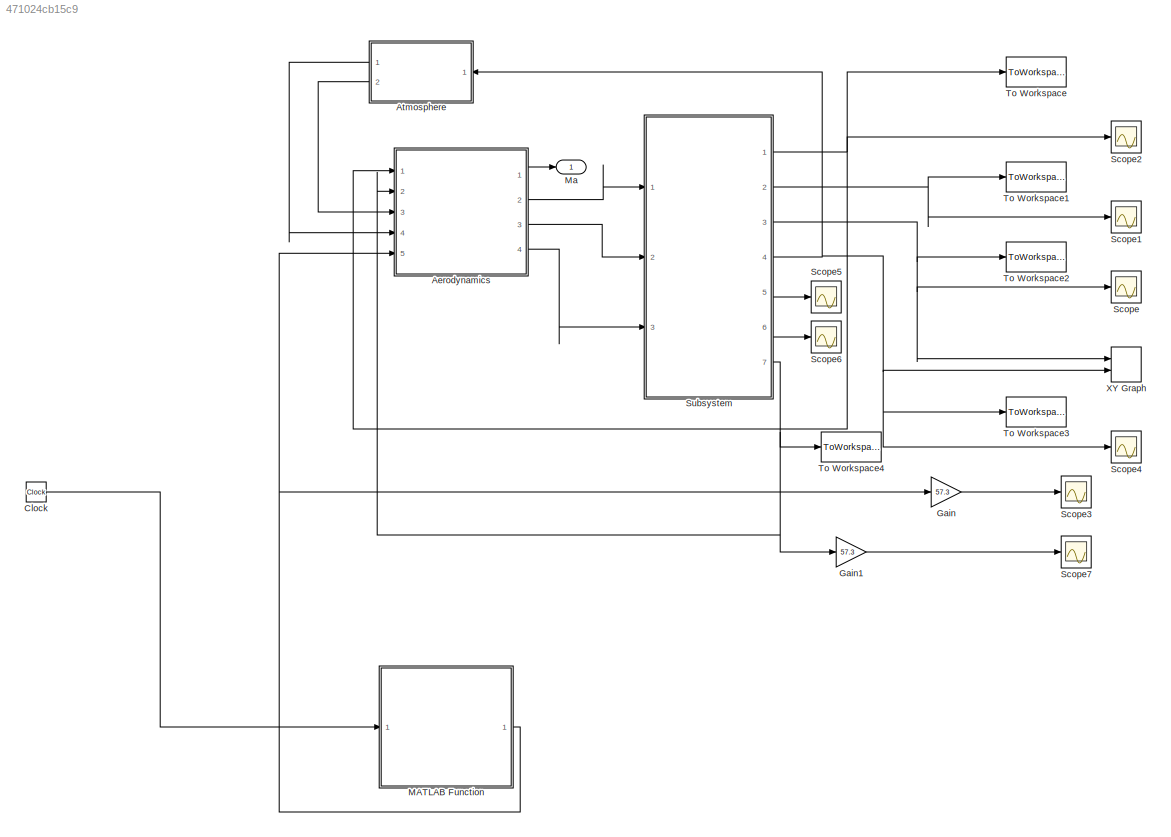
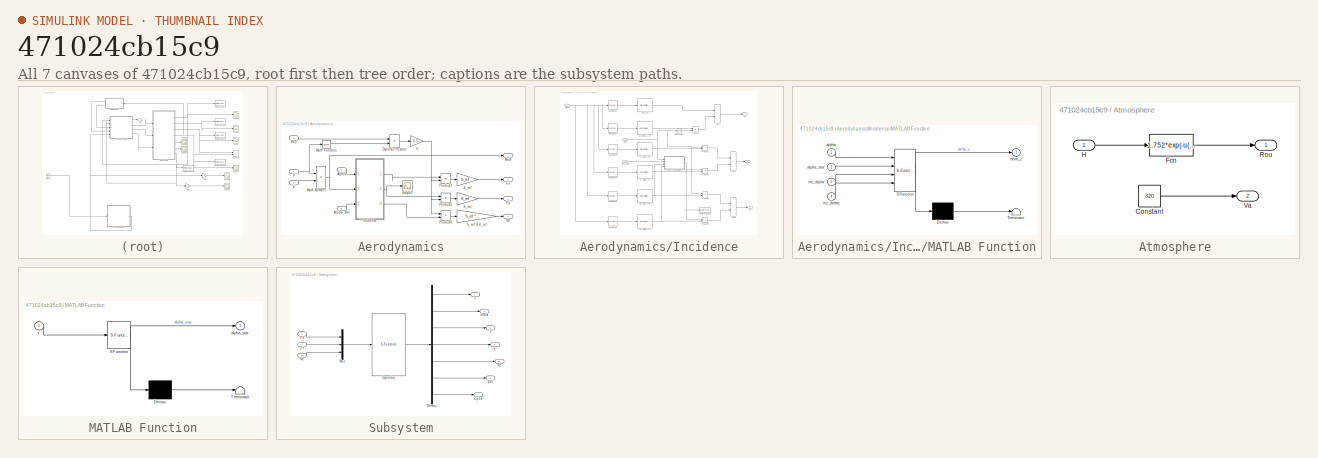
[diagram: thumbnail index - all 7 canvases of the model, root first then tree order]
MODEL slx_471024cb15c9
KIND model
CONFIG AbsTol = auto
CONFIG EnableMultiTasking = off
CONFIG FixedStep = 0.001
CONFIG InitFcn = BeforeSim
CONFIG MaxStep = auto
CONFIG MinStep = auto
CONFIG RelTol = 1e-3
CONFIG SampleTimeConstraint = Unconstrained
CONFIG SolverName = ode4
CONFIG StartTime = 0.0
CONFIG StopTime = 10
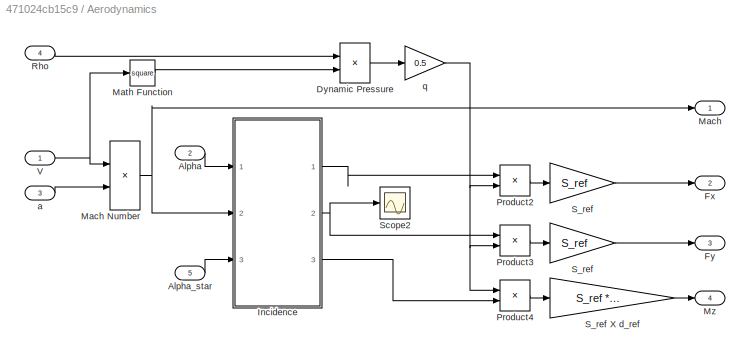
BLOCK [SubSystem] Aerodynamics
  Ports = [5, 4]
  RequestExecContextInheritance = off
BLOCK [Outport] Aerodynamics/ Mach
  InitialOutput = 0
  NameLocation = top
BLOCK [Outport] Aerodynamics/ Mz
  InitialOutput = 0
  Port = 4
BLOCK [Inport] Aerodynamics/Alpha
  Port = 2
BLOCK [Inport] Aerodynamics/Alpha_star
  Port = 5
BLOCK [Product] Aerodynamics/Dynamic Pressure
  InputSameDT = on
  OutDataTypeStr = Inherit: Same as first input
  Ports = [2, 1]
  SaturateOnIntegerOverflow = on
BLOCK [Outport] Aerodynamics/Fx
  InitialOutput = [0]
  Port = 2
BLOCK [Outport] Aerodynamics/Fy
  InitialOutput = 0
  Port = 3
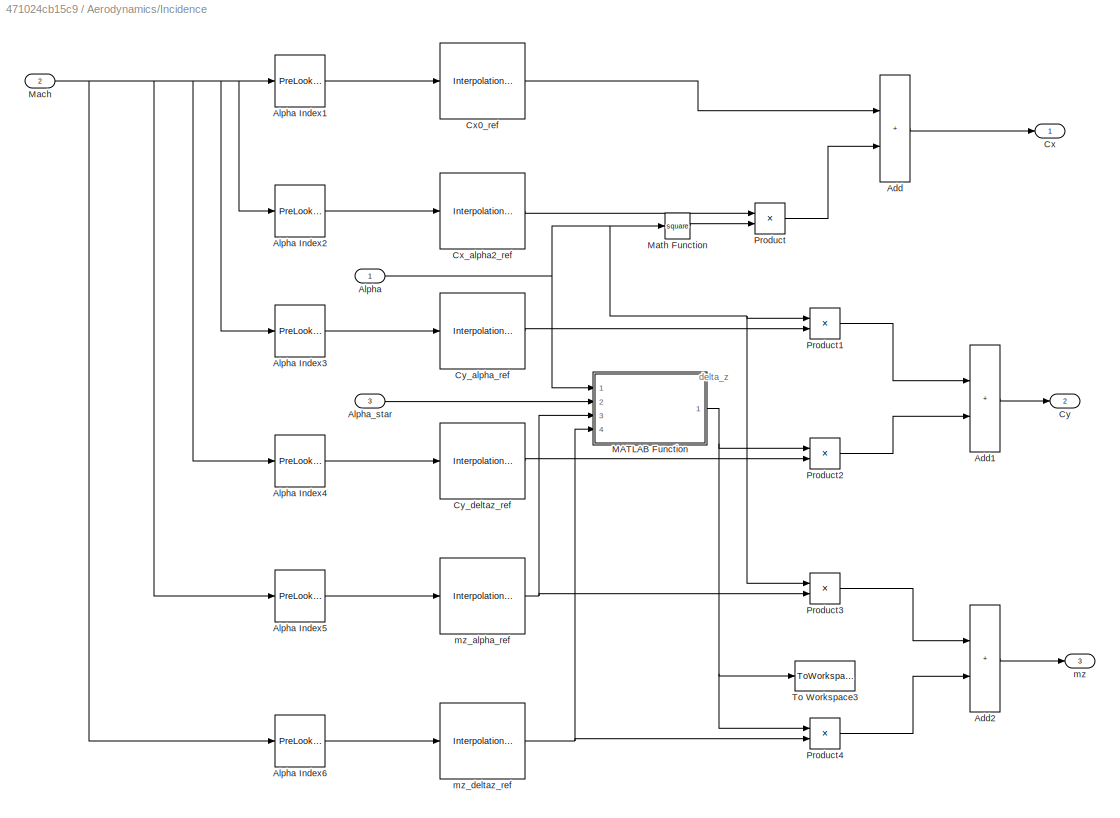
BLOCK [SubSystem] Aerodynamics/Incidence
  Ports = [3, 3]
  RequestExecContextInheritance = off
BLOCK [Sum] Aerodynamics/Incidence/Add
  IconShape = rectangular
  Ports = [2, 1]
BLOCK [Sum] Aerodynamics/Incidence/Add1
  IconShape = rectangular
  Ports = [2, 1]
BLOCK [Sum] Aerodynamics/Incidence/Add2
  IconShape = rectangular
  Ports = [2, 1]
BLOCK [Inport] Aerodynamics/Incidence/Alpha
BLOCK [Reference] Aerodynamics/Incidence/Alpha Index1  REF=simulink_need_slupdate/PreLookup
Index Search
  Ports = [1, 1]
  SourceBlock = simulink_need_slupdate/PreLookup\nIndex Search
  SourceProductBaseCode = SL
  SourceType = LookupIdxSearch
BLOCK [Reference] Aerodynamics/Incidence/Alpha Index2  REF=simulink_need_slupdate/PreLookup
Index Search
  Ports = [1, 1]
  SourceBlock = simulink_need_slupdate/PreLookup\nIndex Search
  SourceProductBaseCode = SL
  SourceType = LookupIdxSearch
BLOCK [Reference] Aerodynamics/Incidence/Alpha Index3  REF=simulink_need_slupdate/PreLookup
Index Search
  Ports = [1, 1]
  SourceBlock = simulink_need_slupdate/PreLookup\nIndex Search
  SourceProductBaseCode = SL
  SourceType = LookupIdxSearch
BLOCK [Reference] Aerodynamics/Incidence/Alpha Index4  REF=simulink_need_slupdate/PreLookup
Index Search
  Ports = [1, 1]
  SourceBlock = simulink_need_slupdate/PreLookup\nIndex Search
  SourceProductBaseCode = SL
  SourceType = LookupIdxSearch
BLOCK [Reference] Aerodynamics/Incidence/Alpha Index5  REF=simulink_need_slupdate/PreLookup
Index Search
  Ports = [1, 1]
  SourceBlock = simulink_need_slupdate/PreLookup\nIndex Search
  SourceProductBaseCode = SL
  SourceType = LookupIdxSearch
BLOCK [Reference] Aerodynamics/Incidence/Alpha Index6  REF=simulink_need_slupdate/PreLookup
Index Search
  Ports = [1, 1]
  SourceBlock = simulink_need_slupdate/PreLookup\nIndex Search
  SourceProductBaseCode = SL
  SourceType = LookupIdxSearch
BLOCK [Inport] Aerodynamics/Incidence/Alpha_star
  Port = 3
BLOCK [Outport] Aerodynamics/Incidence/Cx
  InitialOutput = 0
BLOCK [Reference] Aerodynamics/Incidence/Cx0_ref  REF=simulink_need_slupdate/Interpolation (n-D)
using PreLookup
  Ports = [1, 1]
  SourceBlock = simulink_need_slupdate/Interpolation (n-D)\nusing PreLookup
  SourceProductBaseCode = SL
  SourceType = LookupNDInterpIdx
BLOCK [Reference] Aerodynamics/Incidence/Cx_alpha2_ref  REF=simulink_need_slupdate/Interpolation (n-D)
using PreLookup
  Ports = [1, 1]
  SourceBlock = simulink_need_slupdate/Interpolation (n-D)\nusing PreLookup
  SourceProductBaseCode = SL
  SourceType = LookupNDInterpIdx
BLOCK [Outport] Aerodynamics/Incidence/Cy
  InitialOutput = 0
  Port = 2
BLOCK [Reference] Aerodynamics/Incidence/Cy_alpha_ref  REF=simulink_need_slupdate/Interpolation (n-D)
using PreLookup
  Ports = [1, 1]
  SourceBlock = simulink_need_slupdate/Interpolation (n-D)\nusing PreLookup
  SourceProductBaseCode = SL
  SourceType = LookupNDInterpIdx
BLOCK [Reference] Aerodynamics/Incidence/Cy_deltaz_ref  REF=simulink_need_slupdate/Interpolation (n-D)
using PreLookup
  Ports = [1, 1]
  SourceBlock = simulink_need_slupdate/Interpolation (n-D)\nusing PreLookup
  SourceProductBaseCode = SL
  SourceType = LookupNDInterpIdx
BLOCK [SubSystem] Aerodynamics/Incidence/MATLAB Function
  ErrorFcn = Stateflow.Translate.translate
  PermitHierarchicalResolution = ExplicitOnly
  Ports = [4, 1]
  RequestExecContextInheritance = off
  SFBlockType = MATLAB Function
  TreatAsAtomicUnit = on
BLOCK [Demux] Aerodynamics/Incidence/MATLAB Function/ Demux 
  Outputs = 1
  Ports = [1, 1]
BLOCK [S-Function] Aerodynamics/Incidence/MATLAB Function/ SFunction 
  EnableBusSupport = on
  FunctionName = sf_sfun
  PortCounts = [4 2]
  Ports = [4, 2]
  SFcnIsStateOwnerBlock = off
  SFunctionDeploymentMode = off
  Tag = Stateflow S-Function 1
BLOCK [Terminator] Aerodynamics/Incidence/MATLAB Function/ Terminator 
BLOCK [Inport] Aerodynamics/Incidence/MATLAB Function/alpha
BLOCK [Inport] Aerodynamics/Incidence/MATLAB Function/alpha_star
  Port = 2
BLOCK [Outport] Aerodynamics/Incidence/MATLAB Function/delta_z
BLOCK [Inport] Aerodynamics/Incidence/MATLAB Function/mz_alpha
  Port = 3
BLOCK [Inport] Aerodynamics/Incidence/MATLAB Function/mz_deltaz
  Port = 4
BLOCK [Inport] Aerodynamics/Incidence/Mach
  Port = 2
BLOCK [Math] Aerodynamics/Incidence/Math Function
  Operator = square
  Ports = [1, 1]
  SignedPower = on
BLOCK [Product] Aerodynamics/Incidence/Product
  Ports = [2, 1]
BLOCK [Product] Aerodynamics/Incidence/Product1
  Ports = [2, 1]
BLOCK [Product] Aerodynamics/Incidence/Product2
  Ports = [2, 1]
BLOCK [Product] Aerodynamics/Incidence/Product3
  Ports = [2, 1]
BLOCK [Product] Aerodynamics/Incidence/Product4
  Ports = [2, 1]
BLOCK [ToWorkspace] Aerodynamics/Incidence/To Workspace3
  FixptAsFi = on
  MaxDataPoints = inf
  Ports = [1]
  SampleTime = -1
  SaveFormat = Timeseries
  VariableName = delta_z
BLOCK [Outport] Aerodynamics/Incidence/mz
  InitialOutput = 0
  Port = 3
BLOCK [Reference] Aerodynamics/Incidence/mz_alpha_ref  REF=simulink_need_slupdate/Interpolation (n-D)
using PreLookup
  Ports = [1, 1]
  SourceBlock = simulink_need_slupdate/Interpolation (n-D)\nusing PreLookup
  SourceProductBaseCode = SL
  SourceType = LookupNDInterpIdx
BLOCK [Reference] Aerodynamics/Incidence/mz_deltaz_ref  REF=simulink_need_slupdate/Interpolation (n-D)
using PreLookup
  Ports = [1, 1]
  SourceBlock = simulink_need_slupdate/Interpolation (n-D)\nusing PreLookup
  SourceProductBaseCode = SL
  SourceType = LookupNDInterpIdx
BLOCK [Product] Aerodynamics/Mach Number
  InputSameDT = on
  Inputs = */
  OutDataTypeStr = Inherit: Same as first input
  Ports = [2, 1]
  SaturateOnIntegerOverflow = on
BLOCK [Math] Aerodynamics/Math Function
  Operator = square
  Ports = [1, 1]
  SignedPower = on
BLOCK [Product] Aerodynamics/Product2
  InputSameDT = on
  OutDataTypeStr = Inherit: Same as first input
  Ports = [2, 1]
  SaturateOnIntegerOverflow = on
BLOCK [Product] Aerodynamics/Product3
  InputSameDT = on
  OutDataTypeStr = Inherit: Same as first input
  Ports = [2, 1]
  SaturateOnIntegerOverflow = on
BLOCK [Product] Aerodynamics/Product4
  InputSameDT = on
  OutDataTypeStr = Inherit: Same as first input
  Ports = [2, 1]
  SaturateOnIntegerOverflow = on
BLOCK [Inport] Aerodynamics/Rho
  Port = 4
BLOCK [Gain] Aerodynamics/S_ref
  Gain = S_ref
  OutDataTypeStr = Inherit: Same as input
  ParamDataTypeStr = Inherit: Same as input
  SaturateOnIntegerOverflow = on
BLOCK [Gain] Aerodynamics/S_ref 
  Gain = S_ref
  OutDataTypeStr = Inherit: Same as input
  ParamDataTypeStr = Inherit: Same as input
  SaturateOnIntegerOverflow = on
BLOCK [Gain] Aerodynamics/S_ref X d_ref
  Gain = S_ref * L_ref
  OutDataTypeStr = Inherit: Same as input
  ParamDataTypeStr = Inherit: Same as input
  SaturateOnIntegerOverflow = on
BLOCK [Scope] Aerodynamics/Scope2
  Floating = off
  NumInputPorts = 1
  Ports = [1]
  ScopeSpecificationString = C++SS(StrPVP('Open','off'),StrPVP('TimeRange','auto'),StrPVP('TickLabels','OneTimeTick'),StrPVP('ShowLegends','off'),StrPVP('LimitDataPoints','off'),StrPVP('MaxDataPoints','5000'),StrPVP('SaveToWorkspace','off'),StrPVP('SaveName','ScopeData2'),StrPVP('YMin','-1.62944'),StrPVP('YMax','4.48792'),StrPVP('BlockParamSampleInput','off'),StrPVP('BlockParamSampleTime','-1'),StrPVP('ZoomMode','on'),StrPVP(...<+632ch>
BLOCK [Inport] Aerodynamics/V
BLOCK [Inport] Aerodynamics/a
  Port = 3
BLOCK [Gain] Aerodynamics/q
  Gain = 0.5
  OutDataTypeStr = Inherit: Same as input
  ParamDataTypeStr = Inherit: Same as input
  SaturateOnIntegerOverflow = on
BLOCK [SubSystem] Atmosphere
  Ports = [1, 2]
  RequestExecContextInheritance = off
BLOCK [Constant] Atmosphere/Constant
  Value = 320
BLOCK [Fcn] Atmosphere/Fcn
  Expr = 1.752*exp(-u(1)/6700)
BLOCK [Inport] Atmosphere/H
BLOCK [Outport] Atmosphere/Rou
BLOCK [Outport] Atmosphere/Va
  Port = 2
BLOCK [Clock] Clock
BLOCK [Gain] Gain
  Gain = 57.3
BLOCK [Gain] Gain1
  Gain = 57.3
BLOCK [SubSystem] MATLAB Function
  ErrorFcn = Stateflow.Translate.translate
  PermitHierarchicalResolution = ExplicitOnly
  Ports = [1, 1]
  RequestExecContextInheritance = off
  SFBlockType = MATLAB Function
  TreatAsAtomicUnit = on
BLOCK [Demux] MATLAB Function/ Demux 
  Outputs = 1
  Ports = [1, 1]
BLOCK [S-Function] MATLAB Function/ SFunction 
  EnableBusSupport = on
  FunctionName = sf_sfun
  PortCounts = [1 2]
  Ports = [1, 2]
  SFcnIsStateOwnerBlock = off
  SFunctionDeploymentMode = off
  Tag = Stateflow S-Function 2
BLOCK [Terminator] MATLAB Function/ Terminator 
BLOCK [Outport] MATLAB Function/alpha_star
BLOCK [Inport] MATLAB Function/t
BLOCK [Outport] Ma
BLOCK [Scope] Scope
  Floating = off
  NumInputPorts = 1
  Ports = [1]
  ScopeSpecificationString = Simulink.scopes.TimeScopeBlockCfg('CurrentConfiguration', extmgr.ConfigurationSet(extmgr.Configuration('Core','General UI',true),extmgr.Configuration('Core','Source UI',true),extmgr.Configuration('Sources','WiredSimulink',true,'DataLoggingVariableName','ScopeData1'),extmgr.Configuration('Visuals','Time Domain',true,'SerializedDisplays',{struct('MinYLimReal','-609.05232','MaxYLimReal','5481.47092',...<+1388ch>
BLOCK [Scope] Scope1
  Floating = off
  NumInputPorts = 1
  Ports = [1]
  ScopeSpecificationString = Simulink.scopes.TimeScopeBlockCfg('CurrentConfiguration', extmgr.ConfigurationSet(extmgr.Configuration('Core','General UI',true),extmgr.Configuration('Core','Source UI',true),extmgr.Configuration('Sources','WiredSimulink',true,'DataLoggingVariableName','ScopeData2'),extmgr.Configuration('Visuals','Time Domain',true,'SerializedDisplays',{struct('MinYLimReal','-1.00535','MaxYLimReal','0.11171','YLab...<+1370ch>
BLOCK [Scope] Scope2
  Floating = off
  NumInputPorts = 1
  Ports = [1]
  ScopeSpecificationString = Simulink.scopes.TimeScopeBlockCfg('CurrentConfiguration', extmgr.ConfigurationSet(extmgr.Configuration('Core','General UI',true),extmgr.Configuration('Core','Source UI',true),extmgr.Configuration('Sources','WiredSimulink',true,'DataLoggingVariableName','ScopeData3'),extmgr.Configuration('Visuals','Time Domain',true,'SerializedDisplays',{struct('MinYLimReal','197.67905','MaxYLimReal','293.73902','Y...<+1384ch>
BLOCK [Scope] Scope3
  Floating = off
  NumInputPorts = 1
  Ports = [1]
  ScopeSpecificationString = Simulink.scopes.TimeScopeBlockCfg('CurrentConfiguration', extmgr.ConfigurationSet(extmgr.Configuration('Core','General UI',true,'FigureColor',[0.156862745098039 0.156862745098039 0.156862745098039]),extmgr.Configuration('Core','Source UI',true),extmgr.Configuration('Sources','WiredSimulink',true,'DataLoggingVariableName','ScopeData4','DataLoggingSaveFormat','StructureWithTime','DataLoggingDecimati...<+2806ch>
BLOCK [Scope] Scope4
  Floating = off
  NumInputPorts = 1
  Ports = [1]
  ScopeSpecificationString = Simulink.scopes.TimeScopeBlockCfg('CurrentConfiguration', extmgr.ConfigurationSet(extmgr.Configuration('Core','General UI',true,'FigureColor',[0.156862745098039 0.156862745098039 0.156862745098039]),extmgr.Configuration('Core','Source UI',true),extmgr.Configuration('Sources','WiredSimulink',true,'DataLoggingVariableName','ScopeData5','DataLoggingSaveFormat','StructureWithTime','DataLoggingDecimati...<+2823ch>
BLOCK [Scope] Scope5
  Floating = off
  NumInputPorts = 1
  Ports = [1]
  ScopeSpecificationString = Simulink.scopes.TimeScopeBlockCfg('CurrentConfiguration', extmgr.ConfigurationSet(extmgr.Configuration('Core','General UI',true),extmgr.Configuration('Core','Source UI',true),extmgr.Configuration('Sources','WiredSimulink',true,'DataLoggingVariableName','ScopeData1'),extmgr.Configuration('Visuals','Time Domain',true,'SerializedDisplays',{struct('MinYLimReal','-0.0504','MaxYLimReal','0.4536','YLabel...<+1364ch>
BLOCK [Scope] Scope6
  Floating = off
  NumInputPorts = 1
  Ports = [1]
  ScopeSpecificationString = Simulink.scopes.TimeScopeBlockCfg('CurrentConfiguration', extmgr.ConfigurationSet(extmgr.Configuration('Core','General UI',true),extmgr.Configuration('Core','Source UI',true),extmgr.Configuration('Sources','WiredSimulink',true,'DataLoggingVariableName','ScopeData2'),extmgr.Configuration('Visuals','Time Domain',true,'SerializedDisplays',{struct('MinYLimReal','-0.12273','MaxYLimReal','1.10457','YLab...<+1370ch>
BLOCK [Scope] Scope7
  Floating = off
  NumInputPorts = 1
  Ports = [1]
  ScopeSpecificationString = Simulink.scopes.TimeScopeBlockCfg('CurrentConfiguration', extmgr.ConfigurationSet(extmgr.Configuration('Core','General UI',true),extmgr.Configuration('Core','Source UI',true),extmgr.Configuration('Sources','WiredSimulink',true,'DataLoggingVariableName','ScopeData3'),extmgr.Configuration('Visuals','Time Domain',true,'SerializedDisplays',{struct('MinYLimReal','-10.13954','MaxYLimReal','91.25586','YL...<+1370ch>
BLOCK [SubSystem] Subsystem
  Ports = [3, 7]
  RequestExecContextInheritance = off
BLOCK [Demux] Subsystem/Demux
  Outputs = 7
  Ports = [1, 7]
BLOCK [S-Function] Subsystem/Dynamics
  EnableBusSupport = off
  FunctionName = VerticalDynamics
  Ports = [1, 1]
  SFcnIsStateOwnerBlock = off
  SFunctionDeploymentMode = off
BLOCK [Inport] Subsystem/FX
BLOCK [Inport] Subsystem/FY
  Port = 2
BLOCK [Mux] Subsystem/Mux
  DisplayOption = bar
  Inputs = 3
  Ports = [3, 1]
BLOCK [Inport] Subsystem/Mz
  Port = 3
BLOCK [Outport] Subsystem/alpha
  Port = 7
BLOCK [Outport] Subsystem/phi
  Port = 6
BLOCK [Outport] Subsystem/theta
  Port = 2
BLOCK [Outport] Subsystem/v
BLOCK [Outport] Subsystem/wz
  Port = 5
BLOCK [Outport] Subsystem/x
  Port = 3
BLOCK [Outport] Subsystem/y
  Port = 4
BLOCK [ToWorkspace] To Workspace
  FixptAsFi = on
  MaxDataPoints = inf
  Ports = [1]
  SampleTime = -1
  SaveFormat = Timeseries
  VariableName = v
BLOCK [ToWorkspace] To Workspace1
  FixptAsFi = on
  MaxDataPoints = inf
  Ports = [1]
  SampleTime = -1
  SaveFormat = Timeseries
  VariableName = tehta
BLOCK [ToWorkspace] To Workspace2
  FixptAsFi = on
  MaxDataPoints = inf
  Ports = [1]
  SampleTime = -1
  SaveFormat = Timeseries
  VariableName = x
BLOCK [ToWorkspace] To Workspace3
  FixptAsFi = on
  MaxDataPoints = inf
  Ports = [1]
  SampleTime = -1
  SaveFormat = Timeseries
  VariableName = y
BLOCK [ToWorkspace] To Workspace4
  FixptAsFi = on
  MaxDataPoints = inf
  Ports = [1]
  SampleTime = -1
  SaveFormat = Timeseries
  VariableName = alpha
BLOCK [Record] XY Graph
  CompatibilityTag = XY
  FileSettingsInternal = {"entries":[{"content":{"excelSettings":{"content":{},"type":"Streamout.ExcelSettings"}},"type":"Streamout.FileSettingStorage","uuid":"ac6b3081-8645-4955-ae6f-fd0c9016351f"}],"packageUris":["http://schema.mathworks.com/mf0/streamout_blocks/R2020a"],"version":"1.0"}
  Layout = [1 1]
  Ports = [2]
  SignalsInternal = {"entries":[{"content":{"signals":[{"content":{"blockPath":["actual_flight/XY Graph"],"channel":[],"dimensions":[1],"domain":"actual_flight/XY Graph","lineColor":"#a2142f","plots":[1],"port":1,"sid":[""],"signalID":117,"signalName":"Subsystem:3"},"type":"RecordBlkView.Signal","uuid":"a6b6c65e-2a84-4de5-9352-2b80d4c69f46"},{"content":{"blockPath":["actual_flight/XY Graph"],"channel":[],"dimensions"...<+389ch>
  VisualizationBindings = {"xyplotplugin":{"info":[{"series":[{"bindingParametersList":[{"parameter":"X-Axis","signalID":117,"signalName":"Subsystem:3"},{"parameter":"Y-Axis","signalID":121,"signalName":"Subsystem:4"}],"seriesID":55315}],"subplotID":1}]}}
  st = -1
ANNOTATION Aerodynamics/Incidence: delta_z
LINE Aerodynamics/Alpha:1 -> Aerodynamics/Incidence:1
LINE Aerodynamics/Alpha_star:1 -> Aerodynamics/Incidence:3
LINE Aerodynamics/Dynamic Pressure:1 -> Aerodynamics/q:1
LINE Aerodynamics/Incidence/Add1:1 -> Aerodynamics/Incidence/Cy:1
LINE Aerodynamics/Incidence/Add2:1 -> Aerodynamics/Incidence/mz:1
LINE Aerodynamics/Incidence/Add:1 -> Aerodynamics/Incidence/Cx:1
LINE Aerodynamics/Incidence/Alpha Index1:1 -> Aerodynamics/Incidence/Cx0_ref:1
LINE Aerodynamics/Incidence/Alpha Index2:1 -> Aerodynamics/Incidence/Cx_alpha2_ref:1
LINE Aerodynamics/Incidence/Alpha Index3:1 -> Aerodynamics/Incidence/Cy_alpha_ref:1
LINE Aerodynamics/Incidence/Alpha Index4:1 -> Aerodynamics/Incidence/Cy_deltaz_ref:1
LINE Aerodynamics/Incidence/Alpha Index5:1 -> Aerodynamics/Incidence/mz_alpha_ref:1
LINE Aerodynamics/Incidence/Alpha Index6:1 -> Aerodynamics/Incidence/mz_deltaz_ref:1
NET Aerodynamics/Incidence/Alpha:1 -> Aerodynamics/Incidence/MATLAB Function:1, Aerodynamics/Incidence/Math Function:1, Aerodynamics/Incidence/Product1:1, Aerodynamics/Incidence/Product3:1
LINE Aerodynamics/Incidence/Alpha_star:1 -> Aerodynamics/Incidence/MATLAB Function:2
LINE Aerodynamics/Incidence/Cx0_ref:1 -> Aerodynamics/Incidence/Add:1
LINE Aerodynamics/Incidence/Cx_alpha2_ref:1 -> Aerodynamics/Incidence/Product:1
LINE Aerodynamics/Incidence/Cy_alpha_ref:1 -> Aerodynamics/Incidence/Product1:2
LINE Aerodynamics/Incidence/Cy_deltaz_ref:1 -> Aerodynamics/Incidence/Product2:2
NET Aerodynamics/Incidence/MATLAB Function:1 -> Aerodynamics/Incidence/Product2:1, Aerodynamics/Incidence/Product4:1, Aerodynamics/Incidence/To Workspace3:1
NET Aerodynamics/Incidence/Mach:1 -> Aerodynamics/Incidence/Alpha Index1:1, Aerodynamics/Incidence/Alpha Index2:1, Aerodynamics/Incidence/Alpha Index3:1, Aerodynamics/Incidence/Alpha Index4:1, Aerodynamics/Incidence/Alpha Index5:1, Aerodynamics/Incidence/Alpha Index6:1
LINE Aerodynamics/Incidence/Math Function:1 -> Aerodynamics/Incidence/Product:2
LINE Aerodynamics/Incidence/Product1:1 -> Aerodynamics/Incidence/Add1:1
LINE Aerodynamics/Incidence/Product2:1 -> Aerodynamics/Incidence/Add1:2
LINE Aerodynamics/Incidence/Product3:1 -> Aerodynamics/Incidence/Add2:1
LINE Aerodynamics/Incidence/Product4:1 -> Aerodynamics/Incidence/Add2:2
LINE Aerodynamics/Incidence/Product:1 -> Aerodynamics/Incidence/Add:2
NET Aerodynamics/Incidence/mz_alpha_ref:1 -> Aerodynamics/Incidence/MATLAB Function:3, Aerodynamics/Incidence/Product3:2
NET Aerodynamics/Incidence/mz_deltaz_ref:1 -> Aerodynamics/Incidence/MATLAB Function:4, Aerodynamics/Incidence/Product4:2
LINE Aerodynamics/Incidence:1 -> Aerodynamics/Product2:1
NET Aerodynamics/Incidence:2 -> Aerodynamics/Product3:1, Aerodynamics/Scope2:1
LINE Aerodynamics/Incidence:3 -> Aerodynamics/Product4:2
NET Aerodynamics/Mach Number:1 -> Aerodynamics/ Mach:1, Aerodynamics/Incidence:2
LINE Aerodynamics/Math Function:1 -> Aerodynamics/Dynamic Pressure:2
LINE Aerodynamics/Product2:1 -> Aerodynamics/S_ref:1
LINE Aerodynamics/Product3:1 -> Aerodynamics/S_ref :1
LINE Aerodynamics/Product4:1 -> Aerodynamics/S_ref X d_ref:1
LINE Aerodynamics/Rho:1 -> Aerodynamics/Dynamic Pressure:1
LINE Aerodynamics/S_ref :1 -> Aerodynamics/Fy:1
LINE Aerodynamics/S_ref X d_ref:1 -> Aerodynamics/ Mz:1
LINE Aerodynamics/S_ref:1 -> Aerodynamics/Fx:1
NET Aerodynamics/V:1 -> Aerodynamics/Mach Number:1, Aerodynamics/Math Function:1
LINE Aerodynamics/a:1 -> Aerodynamics/Mach Number:2
NET Aerodynamics/q:1 -> Aerodynamics/Product2:2, Aerodynamics/Product3:2, Aerodynamics/Product4:1
LINE Aerodynamics:1 -> Ma:1
LINE Aerodynamics:2 -> Subsystem:1
LINE Aerodynamics:3 -> Subsystem:2
LINE Aerodynamics:4 -> Subsystem:3
LINE Atmosphere/Constant:1 -> Atmosphere/Va:1
LINE Atmosphere/Fcn:1 -> Atmosphere/Rou:1
LINE Atmosphere/H:1 -> Atmosphere/Fcn:1
LINE Atmosphere:1 -> Aerodynamics:4
LINE Atmosphere:2 -> Aerodynamics:3
LINE Clock:1 -> MATLAB Function:1
LINE Gain1:1 -> Scope7:1
LINE Gain:1 -> Scope3:1
NET MATLAB Function:1 -> Aerodynamics:5, Gain:1
LINE Subsystem/Demux:1 -> Subsystem/v:1
LINE Subsystem/Demux:2 -> Subsystem/theta:1
LINE Subsystem/Demux:3 -> Subsystem/x:1
LINE Subsystem/Demux:4 -> Subsystem/y:1
LINE Subsystem/Demux:5 -> Subsystem/wz:1
LINE Subsystem/Demux:6 -> Subsystem/phi:1
LINE Subsystem/Demux:7 -> Subsystem/alpha:1
LINE Subsystem/Dynamics:1 -> Subsystem/Demux:1
LINE Subsystem/FX:1 -> Subsystem/Mux:1
LINE Subsystem/FY:1 -> Subsystem/Mux:2
LINE Subsystem/Mux:1 -> Subsystem/Dynamics:1
LINE Subsystem/Mz:1 -> Subsystem/Mux:3
NET Subsystem:1 -> Aerodynamics:1, Scope2:1, To Workspace:1
NET Subsystem:2 -> Scope1:1, To Workspace1:1
NET Subsystem:3 -> Scope:1, To Workspace2:1, XY Graph:1
NET Subsystem:4 -> Atmosphere:1, Scope4:1, To Workspace3:1, XY Graph:2
LINE Subsystem:5 -> Scope5:1
LINE Subsystem:6 -> Scope6:1
NET Subsystem:7 -> Aerodynamics:2, Gain1:1, To Workspace4:1
note: NET lines group one-source signal fan-out (src -> all destinations, sorted); 1:1 wires keep LINE
CHART Aerodynamics/Incidence/MATLAB Function states=1 transitions=1
  STATE_LABEL 'eML_blk_kernel()'
  STATE_LABEL 'SCRIPT:\nfunction delta_z = fcn(alpha,alpha_star,mz_alpha,mz_deltaz)\nK = 1.0;\ndelta_zB = -mz_alpha*alpha_star/mz_deltaz;\ndelta_z = delta_zB + K*(alpha-alpha_star);\n'
CHART MATLAB Function states=1 transitions=1
  STATE_LABEL 'eML_blk_kernel()'
  STATE_LABEL 'SCRIPT:\nfunction alpha_star = fcn(t)\nalpha_star_tem = 0;\nif t > 0 && t < 3\n    alpha_star_tem = 0;\nelse\n    alpha_star_tem = 5;\nend\nalpha_star = alpha_star_tem*pi/180;%将度转换为弧度\n'
CHART  states=0 transitions=0
CHART  states=0 transitions=0
